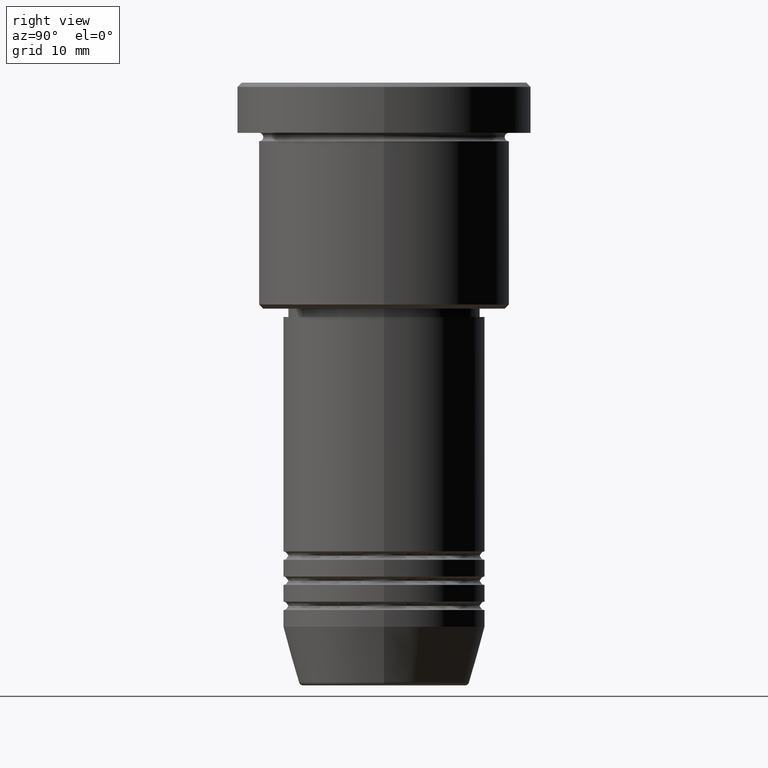
[diagram: clean part render]
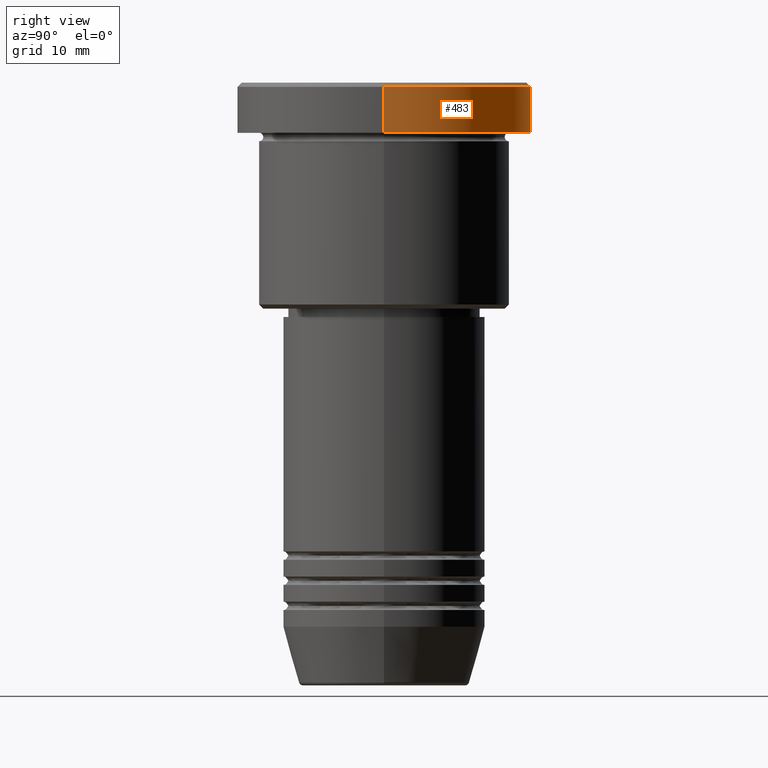
[diagram: same view with one face highlighted and labeled with its STEP entity id]
A machine part, right view. The second image highlights one B-rep face of the part: STEP entity #483.
In plain terms, the highlighted cylindrical surface (partial cylindrical patch) has radius 17.5 mm, axis along (-0, -0, 1).
Its self-contained STEP definition (entity closure, byte-faithful):
#2 = CARTESIAN_POINT ( 'NONE',  ( 17.50000000000000000, 0.000000000000000000, 0.000000000000000000 ) ) ;
#9 = AXIS2_PLACEMENT_3D ( 'NONE', #19, #1115, #1132 ) ;
#19 = CARTESIAN_POINT ( 'NONE',  ( 0.000000000000000000, 0.000000000000000000, -5.999999999999995559 ) ) ;
#59 = EDGE_CURVE ( 'NONE', #274, #704, #86, .T. ) ;
#73 = DIRECTION ( 'NONE',  ( -0.000000000000000000, -0.000000000000000000, 1.000000000000000000 ) ) ;
#86 = CIRCLE ( 'NONE', #1003, 17.50000000000000000 ) ;
#102 = ORIENTED_EDGE ( 'NONE', *, *, #365, .F. ) ;
#121 = VECTOR ( 'NONE', #370, 1000.000000000000000 ) ;
#124 = CIRCLE ( 'NONE', #9, 17.50000000000000000 ) ;
#136 = DIRECTION ( 'NONE',  ( 1.000000000000000000, 0.000000000000000000, 0.000000000000000000 ) ) ;
#262 = EDGE_CURVE ( 'NONE', #363, #274, #977, .T. ) ;
#274 = VERTEX_POINT ( 'NONE', #348 ) ;
#323 = DIRECTION ( 'NONE',  ( 0.000000000000000000, 0.000000000000000000, -1.000000000000000000 ) ) ;
#348 = CARTESIAN_POINT ( 'NONE',  ( -17.50000000000000000, 2.143131898507868248E-15, -0.5000000000000143219 ) ) ;
#363 = VERTEX_POINT ( 'NONE', #1108 ) ;
#365 = EDGE_CURVE ( 'NONE', #539, #704, #580, .T. ) ;
#370 = DIRECTION ( 'NONE',  ( -0.000000000000000000, -0.000000000000000000, 1.000000000000000000 ) ) ;
#407 = FACE_OUTER_BOUND ( 'NONE', #826, .T. ) ;
#478 = CARTESIAN_POINT ( 'NONE',  ( 17.50000000000000000, 0.000000000000000000, -0.5000000000000143219 ) ) ;
#483 = ADVANCED_FACE ( 'NONE', ( #407 ), #495, .T. ) ;
#495 = CYLINDRICAL_SURFACE ( 'NONE', #635, 17.50000000000000000 ) ;
#539 = VERTEX_POINT ( 'NONE', #1168 ) ;
#580 = LINE ( 'NONE', #2, #121 ) ;
#635 = AXIS2_PLACEMENT_3D ( 'NONE', #762, #694, #136 ) ;
#694 = DIRECTION ( 'NONE',  ( -0.000000000000000000, -0.000000000000000000, 1.000000000000000000 ) ) ;
#704 = VERTEX_POINT ( 'NONE', #478 ) ;
#762 = CARTESIAN_POINT ( 'NONE',  ( 0.000000000000000000, 0.000000000000000000, 0.000000000000000000 ) ) ;
#795 = ORIENTED_EDGE ( 'NONE', *, *, #1166, .T. ) ;
#826 = EDGE_LOOP ( 'NONE', ( #795, #917, #944, #102 ) ) ;
#862 = VECTOR ( 'NONE', #73, 1000.000000000000000 ) ;
#888 = CARTESIAN_POINT ( 'NONE',  ( -17.50000000000000000, 2.143131898507868248E-15, 0.000000000000000000 ) ) ;
#917 = ORIENTED_EDGE ( 'NONE', *, *, #262, .T. ) ;
#944 = ORIENTED_EDGE ( 'NONE', *, *, #59, .T. ) ;
#977 = LINE ( 'NONE', #888, #862 ) ;
#1003 = AXIS2_PLACEMENT_3D ( 'NONE', #1060, #323, #1067 ) ;
#1060 = CARTESIAN_POINT ( 'NONE',  ( 0.000000000000000000, 0.000000000000000000, -0.5000000000000143219 ) ) ;
#1067 = DIRECTION ( 'NONE',  ( 1.000000000000000000, 0.000000000000000000, 0.000000000000000000 ) ) ;
#1108 = CARTESIAN_POINT ( 'NONE',  ( -17.50000000000000000, 2.143131898507868248E-15, -5.999999999999995559 ) ) ;
#1115 = DIRECTION ( 'NONE',  ( -0.000000000000000000, -0.000000000000000000, 1.000000000000000000 ) ) ;
#1132 = DIRECTION ( 'NONE',  ( 1.000000000000000000, 0.000000000000000000, 0.000000000000000000 ) ) ;
#1166 = EDGE_CURVE ( 'NONE', #539, #363, #124, .T. ) ;
#1168 = CARTESIAN_POINT ( 'NONE',  ( 17.50000000000000000, 0.000000000000000000, -5.999999999999995559 ) ) ;